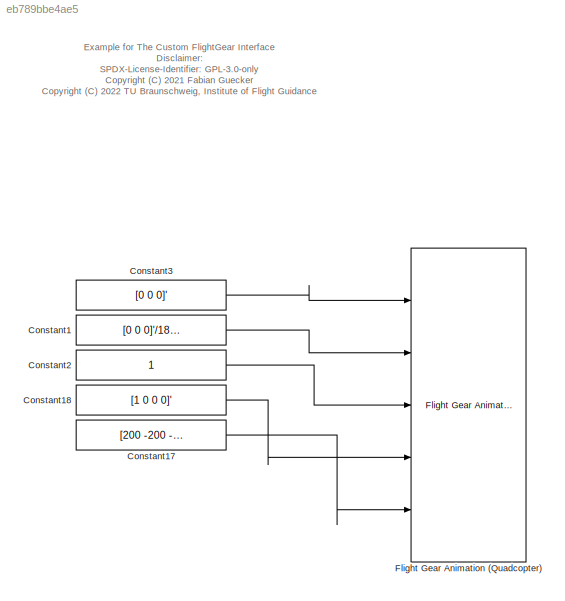
MODEL slx_eb789bbe4ae5
KIND model
CONFIG AbsTol = auto
CONFIG EnableMultiTasking = off
CONFIG FixedStep = 0.030
CONFIG MaxStep = auto
CONFIG MinStep = auto
CONFIG RelTol = 1e-3
CONFIG SampleTimeConstraint = Unconstrained
CONFIG Solver = FixedStepAuto
CONFIG SolverName = FixedStepAuto
CONFIG StartTime = 0.0
CONFIG StopTime = inf
BLOCK [Constant] Constant1
  Value = [0 0 0]'/180*pi
  VectorParams1D = off
BLOCK [Constant] Constant17
  Value = [200 -200 -200 200]'*0.1
  VectorParams1D = off
BLOCK [Constant] Constant18
  Value = [1 0 0 0]'
  VectorParams1D = off
BLOCK [Constant] Constant2
BLOCK [Constant] Constant3
  Value = [0 0 0]'
  VectorParams1D = off
BLOCK [Reference] Flight Gear Animation (Quadcopter)  REF=flightgear_visualization_lib/Flight Gear Animation (Quadcopter)  (lib defined in slx_722f04e3a3fc)
  Ports = [5]
  SourceBlock = flightgear_visualization_lib/Flight Gear Animation (Quadcopter)
  SourceProductName = LADAC
ANNOTATION (root): Example for The Custom FlightGear Interface Disclaimer: SPDX-License-Identifier: GPL-3.0-only <copyright redacted>
LINE Constant17:1 -> Flight Gear Animation (Quadcopter):5
LINE Constant18:1 -> Flight Gear Animation (Quadcopter):4
LINE Constant1:1 -> Flight Gear Animation (Quadcopter):2
LINE Constant2:1 -> Flight Gear Animation (Quadcopter):3
LINE Constant3:1 -> Flight Gear Animation (Quadcopter):1
